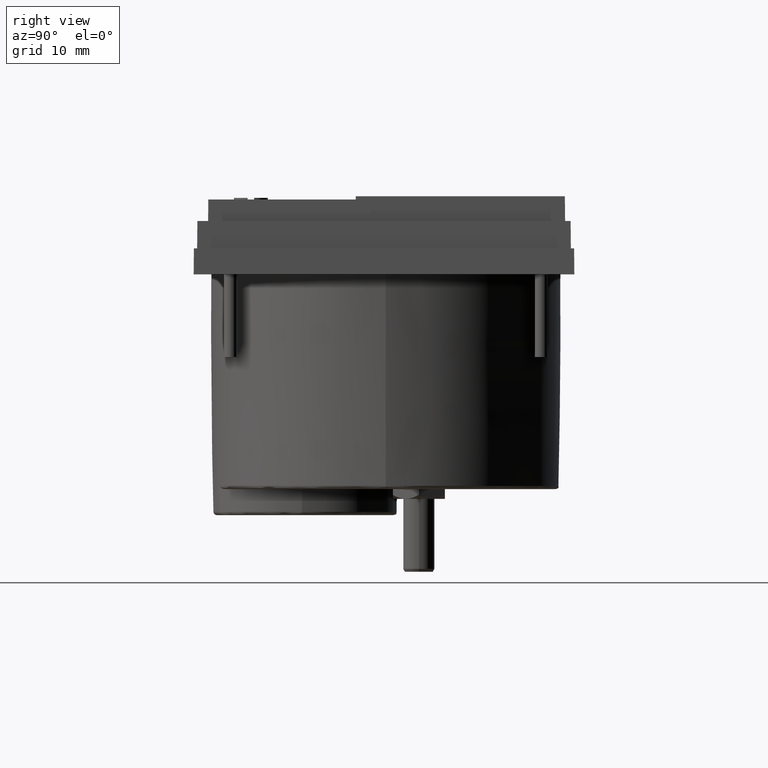
[diagram: clean part render]
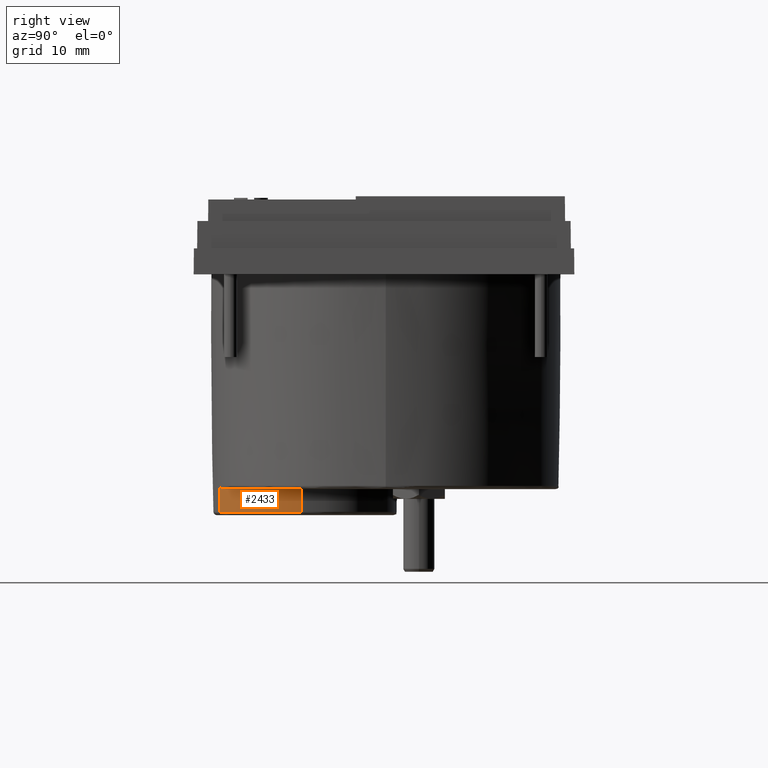
[diagram: same view with one face highlighted and labeled with its STEP entity id]
A machine part, right view. The second image highlights one B-rep face of the part: STEP entity #2433.
In plain terms, the highlighted conical surface has half-angle 0.5 deg.
Its self-contained STEP definition (entity closure, byte-faithful):
#42 = EDGE_CURVE ( 'NONE', #4613, #1967, #3367, .T. ) ;
#109 = CARTESIAN_POINT ( 'NONE',  ( 0.3526218288023976744, -0.1509467700145799840, -1.572440944881890568 ) ) ;
#228 = FACE_OUTER_BOUND ( 'NONE', #2216, .T. ) ;
#273 = VECTOR ( 'NONE', #1102, 39.37007874015748854 ) ;
#569 = CARTESIAN_POINT ( 'NONE',  ( 0.3181240869651614234, -0.1755804231580952723, -1.568397780588455914 ) ) ;
#587 = LINE ( 'NONE', #5701, #273 ) ;
#620 = DIRECTION ( 'NONE',  ( 0.003475595810697835845, -0.008083078766153981021, 0.9999612912865281089 ) ) ;
#696 = VERTEX_POINT ( 'NONE', #1973 ) ;
#813 = VECTOR ( 'NONE', #620, 39.37007874015748854 ) ;
#885 = DIRECTION ( 'NONE',  ( 1.000000000000000000, 0.000000000000000000, 0.000000000000000000 ) ) ;
#1102 = DIRECTION ( 'NONE',  ( 0.008726535488402641788, 0.000000000000000000, 0.9999619230642582401 ) ) ;
#1136 = CIRCLE ( 'NONE', #3728, 0.5775361372089174994 ) ;
#1193 = EDGE_CURVE ( 'NONE', #4262, #4613, #4095, .T. ) ;
#1237 = DIRECTION ( 'NONE',  ( -1.000000000000000000, 0.000000000000000000, -2.365088362146979064E-15 ) ) ;
#1327 = CIRCLE ( 'NONE', #5286, 0.5787401574803150428 ) ;
#1396 = ORIENTED_EDGE ( 'NONE', *, *, #5476, .T. ) ;
#1480 = CARTESIAN_POINT ( 'NONE',  ( 0.2953775942863182680, -0.1898749263850640356, -1.557659983208001142 ) ) ;
#1574 = ORIENTED_EDGE ( 'NONE', *, *, #2929, .T. ) ;
#1967 = VERTEX_POINT ( 'NONE', #4235 ) ;
#1973 = CARTESIAN_POINT ( 'NONE',  ( 0.5775361372089187206, 0.3079628242764882451, -1.710408002667302307 ) ) ;
#2025 = CARTESIAN_POINT ( 'NONE',  ( 0.3032391018990391873, -0.1850758301838422715, -1.563203242858881792 ) ) ;
#2216 = EDGE_LOOP ( 'NONE', ( #3060, #1396, #1574, #3864, #3358 ) ) ;
#2277 = VERTEX_POINT ( 'NONE', #3315 ) ;
#2433 = ADVANCED_FACE ( 'NONE', ( #228 ), #2680, .T. ) ;
#2680 = CONICAL_SURFACE ( 'NONE', #2955, 0.5788883346539724917, 0.008726646249999976679 ) ;
#2864 = CARTESIAN_POINT ( 'NONE',  ( 0.2963897602980576917, -0.1892637608837777485, -1.558643574543450150 ) ) ;
#2929 = EDGE_CURVE ( 'NONE', #2277, #1967, #1327, .T. ) ;
#2955 = AXIS2_PLACEMENT_3D ( 'NONE', #5315, #3970, #5823 ) ;
#3012 = DIRECTION ( 'NONE',  ( 0.000000000000000000, 0.000000000000000000, 1.000000000000000000 ) ) ;
#3060 = ORIENTED_EDGE ( 'NONE', *, *, #4543, .T. ) ;
#3315 = CARTESIAN_POINT ( 'NONE',  ( 0.5787401574803161530, 0.3079628242764882451, -1.572440944881893232 ) ) ;
#3358 = ORIENTED_EDGE ( 'NONE', *, *, #1193, .F. ) ;
#3367 = B_SPLINE_CURVE_WITH_KNOTS ( 'NONE', 3,
 ( #3770, #1480, #2864, #4278, #3829, #2025, #5192, #4699, #569, #3404, #4248, #109 ),
 .UNSPECIFIED., .F., .F.,
 ( 4, 2, 2, 2, 2, 4 ),
 ( 6.493637913581038443E-17, 0.0001171479485754075482, 0.0002342958971507501798, 0.0004685917943014293987, 0.0009371835886027891915, 0.001874367177205505091 ),
 .UNSPECIFIED. ) ;
#3404 = CARTESIAN_POINT ( 'NONE',  ( 0.3330420650056658549, -0.1655101863701519960, -1.571494627282061796 ) ) ;
#3728 = AXIS2_PLACEMENT_3D ( 'NONE', #4850, #3012, #1237 ) ;
#3770 = CARTESIAN_POINT ( 'NONE',  ( 0.2945860934697743239, -0.1903557534465971646, -1.556385643741205138 ) ) ;
#3829 = CARTESIAN_POINT ( 'NONE',  ( 0.2997204637944145267, -0.1872377147077277648, -1.561169412084364660 ) ) ;
#3864 = ORIENTED_EDGE ( 'NONE', *, *, #42, .F. ) ;
#3970 = DIRECTION ( 'NONE',  ( 0.000000000000000000, 0.000000000000000000, 1.000000000000000000 ) ) ;
#4095 = LINE ( 'NONE', #5945, #813 ) ;
#4132 = CARTESIAN_POINT ( 'NONE',  ( 0.2940507883498156838, -0.1891107337283403911, -1.710408002657602955 ) ) ;
#4235 = CARTESIAN_POINT ( 'NONE',  ( 0.3526218288023976744, -0.1509467700145799840, -1.572440944881890568 ) ) ;
#4248 = CARTESIAN_POINT ( 'NONE',  ( 0.3428946992747215483, -0.1584210051269356323, -1.572440944881889902 ) ) ;
#4262 = VERTEX_POINT ( 'NONE', #4132 ) ;
#4278 = CARTESIAN_POINT ( 'NONE',  ( 0.2985607836978981244, -0.1879451918687890799, -1.560411831952209338 ) ) ;
#4543 = EDGE_CURVE ( 'NONE', #4262, #696, #1136, .T. ) ;
#4613 = VERTEX_POINT ( 'NONE', #5947 ) ;
#4699 = CARTESIAN_POINT ( 'NONE',  ( 0.3130972590003460176, -0.1788622541586634695, -1.567083841383004605 ) ) ;
#4850 = CARTESIAN_POINT ( 'NONE',  ( 1.110009266161688993E-15, 0.3079628242764882451, -1.710408002667302307 ) ) ;
#5026 = CARTESIAN_POINT ( 'NONE',  ( 1.126887297386508504E-15, 0.3079628242764882451, -1.572440944881893232 ) ) ;
#5192 = CARTESIAN_POINT ( 'NONE',  ( 0.3056776506333226950, -0.1835577109233559878, -1.564271472693549603 ) ) ;
#5286 = AXIS2_PLACEMENT_3D ( 'NONE', #5026, #5428, #885 ) ;
#5315 = CARTESIAN_POINT ( 'NONE',  ( 1.126887297386508504E-15, 0.3079628242764882451, -1.555461522553097220 ) ) ;
#5428 = DIRECTION ( 'NONE',  ( -0.000000000000000000, -0.000000000000000000, -1.000000000000000000 ) ) ;
#5476 = EDGE_CURVE ( 'NONE', #696, #2277, #587, .T. ) ;
#5701 = CARTESIAN_POINT ( 'NONE',  ( 0.5788883346539736019, 0.3079628242764882451, -1.555461522553097220 ) ) ;
#5823 = DIRECTION ( 'NONE',  ( 1.000000000000000000, 0.000000000000000000, 0.000000000000000000 ) ) ;
#5945 = CARTESIAN_POINT ( 'NONE',  ( 0.2943261013152651540, -0.1897510389378919970, -1.631195404287782313 ) ) ;
#5947 = CARTESIAN_POINT ( 'NONE',  ( 0.2945860934697743239, -0.1903557534465971646, -1.556385643741205138 ) ) ;